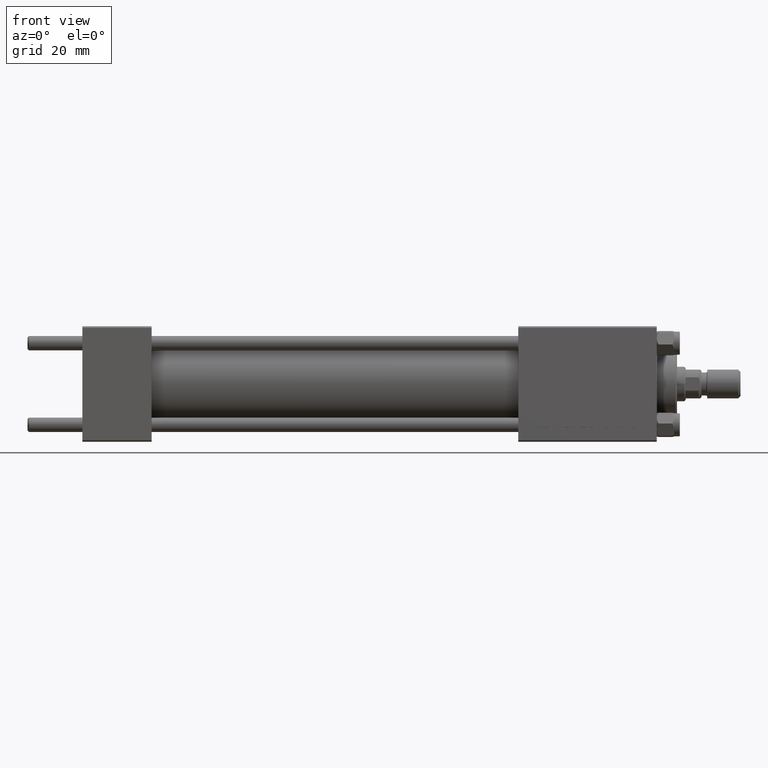
[diagram: clean part render]
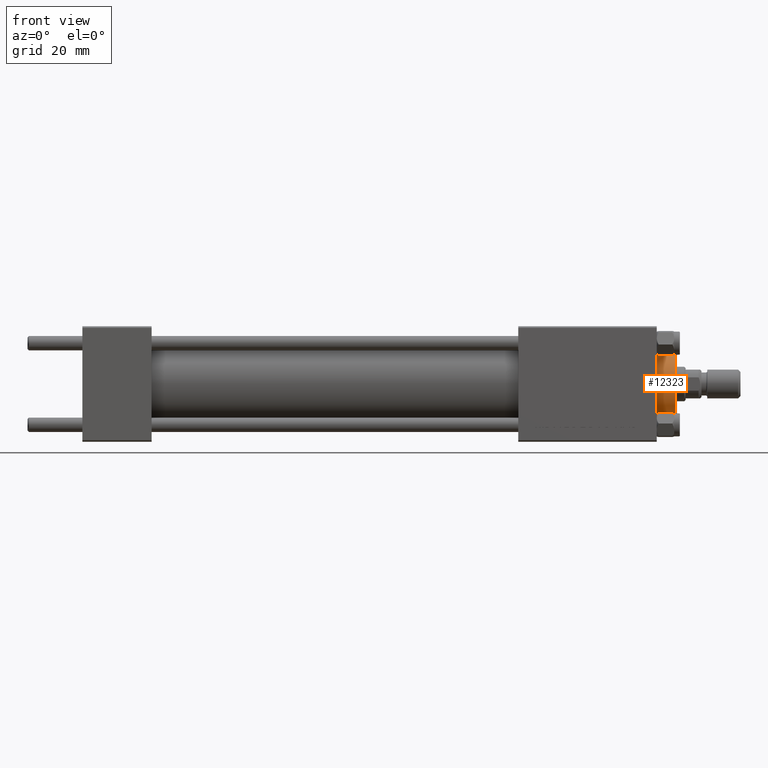
[diagram: same view with one face highlighted and labeled with its STEP entity id]
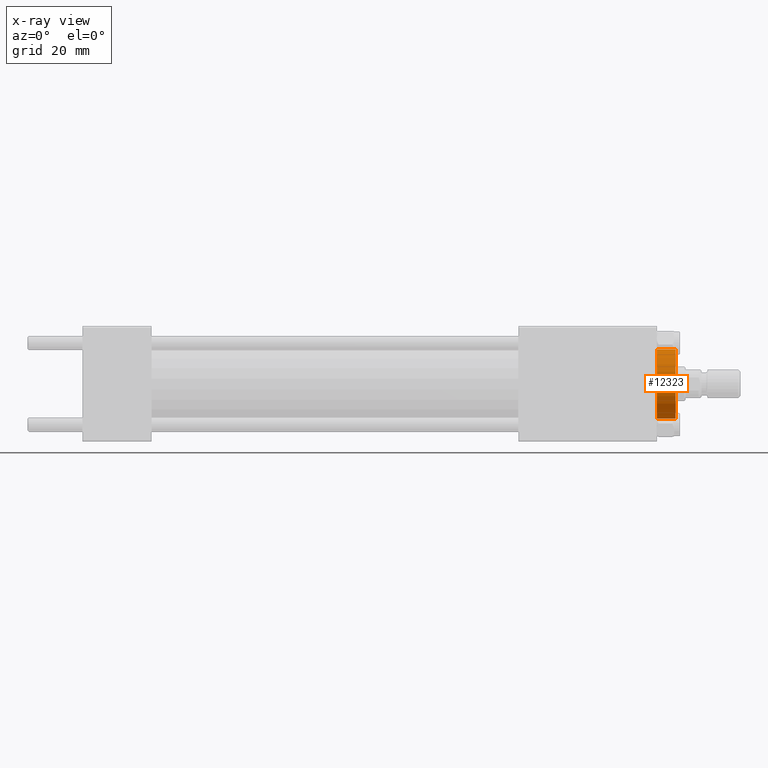
[diagram: x-ray of the same camera — body ghosted, the highlighted face saturated]
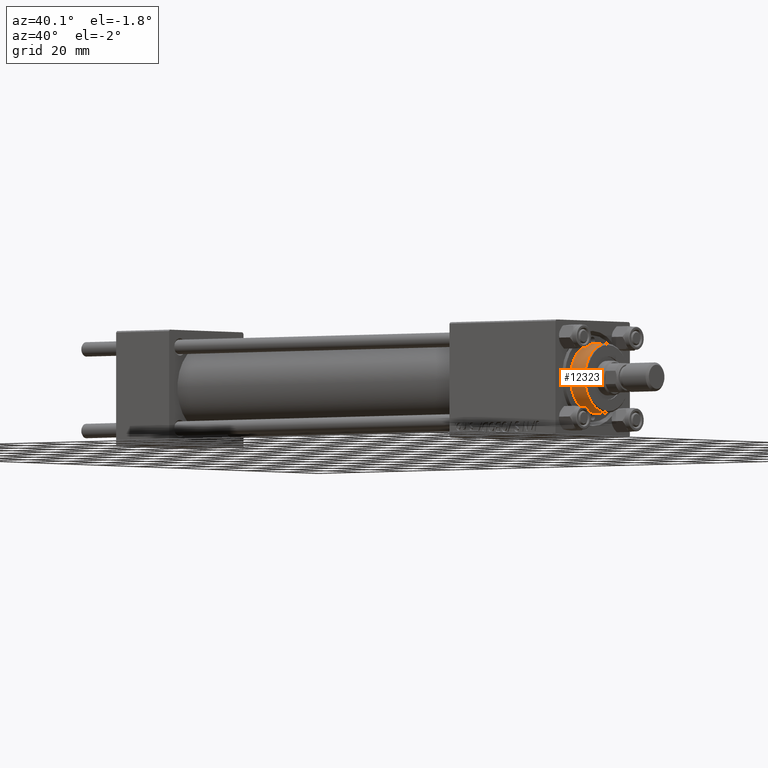
[diagram: same view with one face highlighted and labeled with its STEP entity id]
A machine part, front view. The second image highlights one B-rep face of the part: STEP entity #12323.
The next image is the same camera in x-ray: the body ghosted, the highlighted face saturated — about 0% of this face is hidden behind the body in this view.
A second angle (auxiliary view) of the same face is appended — the face is thin or edge-on in the first view.
In plain terms, the highlighted cylindrical surface (edge-blend (fillet) strip) has radius 12 mm, axis along (-1, -0, 0).
Its self-contained STEP definition (entity closure, byte-faithful):
#322 = VECTOR ( 'NONE', #10696, 1000.000000000000000 ) ;
#626 = DIRECTION ( 'NONE',  ( -0.000000000000000000, -0.000000000000000000, -1.000000000000000000 ) ) ;
#1785 = LINE ( 'NONE', #21896, #322 ) ;
#4190 = AXIS2_PLACEMENT_3D ( 'NONE', #49768, #15330, #30870 ) ;
#7567 = AXIS2_PLACEMENT_3D ( 'NONE', #37197, #49698, #19585 ) ;
#10004 = CIRCLE ( 'NONE', #7567, 12.00000000000000178 ) ;
#10696 = DIRECTION ( 'NONE',  ( -0.000000000000000000, -0.000000000000000000, -1.000000000000000000 ) ) ;
#10740 = VERTEX_POINT ( 'NONE', #28582 ) ;
#11268 = FACE_OUTER_BOUND ( 'NONE', #39156, .T. ) ;
#12323 = ADVANCED_FACE ( 'NONE', ( #11268 ), #50260, .T. ) ;
#14443 = CARTESIAN_POINT ( 'NONE',  ( -12.00000000000000178, 0.000000000000000000, 28.69999999999999929 ) ) ;
#15330 = DIRECTION ( 'NONE',  ( -0.000000000000000000, -0.000000000000000000, -1.000000000000000000 ) ) ;
#16403 = EDGE_CURVE ( 'NONE', #25572, #19013, #10004, .T. ) ;
#18338 = EDGE_CURVE ( 'NONE', #10740, #19013, #1785, .T. ) ;
#19013 = VERTEX_POINT ( 'NONE', #24031 ) ;
#19585 = DIRECTION ( 'NONE',  ( 1.000000000000000000, 0.000000000000000000, 0.000000000000000000 ) ) ;
#20579 = VERTEX_POINT ( 'NONE', #31251 ) ;
#21708 = VECTOR ( 'NONE', #626, 1000.000000000000000 ) ;
#21896 = CARTESIAN_POINT ( 'NONE',  ( 12.00000000000000178, 1.469576158976824144E-15, 35.70000000000000284 ) ) ;
#23112 = ORIENTED_EDGE ( 'NONE', *, *, #44895, .T. ) ;
#24031 = CARTESIAN_POINT ( 'NONE',  ( 12.00000000000000178, 0.000000000000000000, 28.69999999999999929 ) ) ;
#25572 = VERTEX_POINT ( 'NONE', #14443 ) ;
#26436 = EDGE_CURVE ( 'NONE', #20579, #25572, #36504, .T. ) ;
#27991 = ORIENTED_EDGE ( 'NONE', *, *, #16403, .T. ) ;
#28582 = CARTESIAN_POINT ( 'NONE',  ( 12.00000000000000178, 1.469576158976824144E-15, 35.19999999999999574 ) ) ;
#29483 = ORIENTED_EDGE ( 'NONE', *, *, #26436, .T. ) ;
#30870 = DIRECTION ( 'NONE',  ( -1.000000000000000000, 0.000000000000000000, 0.000000000000000000 ) ) ;
#31251 = CARTESIAN_POINT ( 'NONE',  ( -12.00000000000000178, 0.000000000000000000, 35.19999999999999574 ) ) ;
#31887 = CIRCLE ( 'NONE', #44172, 12.00000000000000178 ) ;
#36504 = LINE ( 'NONE', #47503, #21708 ) ;
#36602 = ORIENTED_EDGE ( 'NONE', *, *, #18338, .F. ) ;
#37197 = CARTESIAN_POINT ( 'NONE',  ( 0.000000000000000000, 0.000000000000000000, 28.69999999999999929 ) ) ;
#37876 = DIRECTION ( 'NONE',  ( 0.000000000000000000, 0.000000000000000000, -1.000000000000000000 ) ) ;
#39156 = EDGE_LOOP ( 'NONE', ( #36602, #23112, #29483, #27991 ) ) ;
#41181 = CARTESIAN_POINT ( 'NONE',  ( 0.000000000000000000, 0.000000000000000000, 35.19999999999999574 ) ) ;
#44172 = AXIS2_PLACEMENT_3D ( 'NONE', #41181, #37876, #49126 ) ;
#44895 = EDGE_CURVE ( 'NONE', #10740, #20579, #31887, .T. ) ;
#47503 = CARTESIAN_POINT ( 'NONE',  ( -12.00000000000000178, 0.000000000000000000, 35.70000000000000284 ) ) ;
#49126 = DIRECTION ( 'NONE',  ( 1.000000000000000000, 0.000000000000000000, 0.000000000000000000 ) ) ;
#49698 = DIRECTION ( 'NONE',  ( 0.000000000000000000, 0.000000000000000000, 1.000000000000000000 ) ) ;
#49768 = CARTESIAN_POINT ( 'NONE',  ( 0.000000000000000000, 0.000000000000000000, 35.70000000000000284 ) ) ;
#50260 = CYLINDRICAL_SURFACE ( 'NONE', #4190, 12.00000000000000178 ) ;